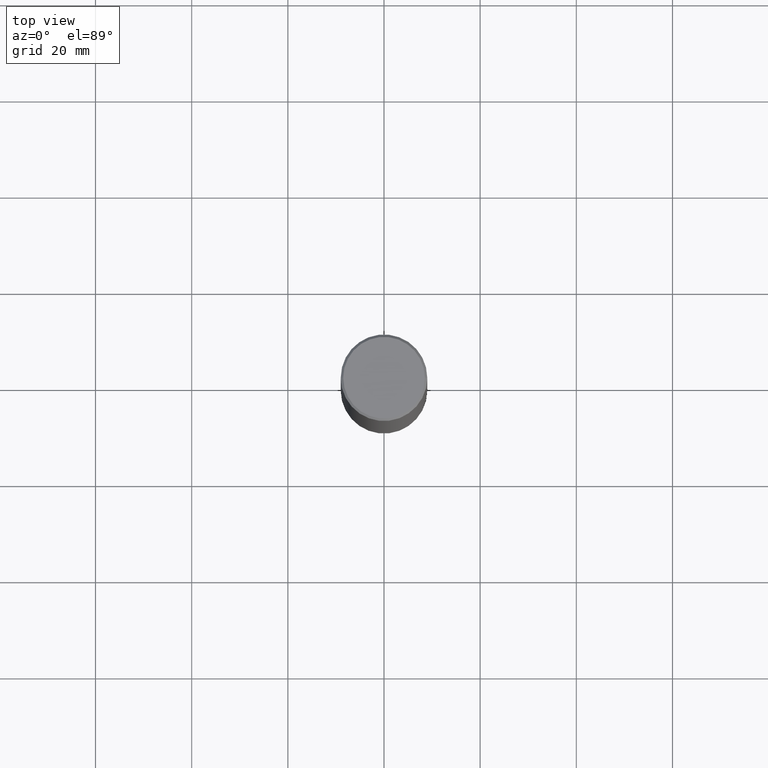
[diagram: clean part render]
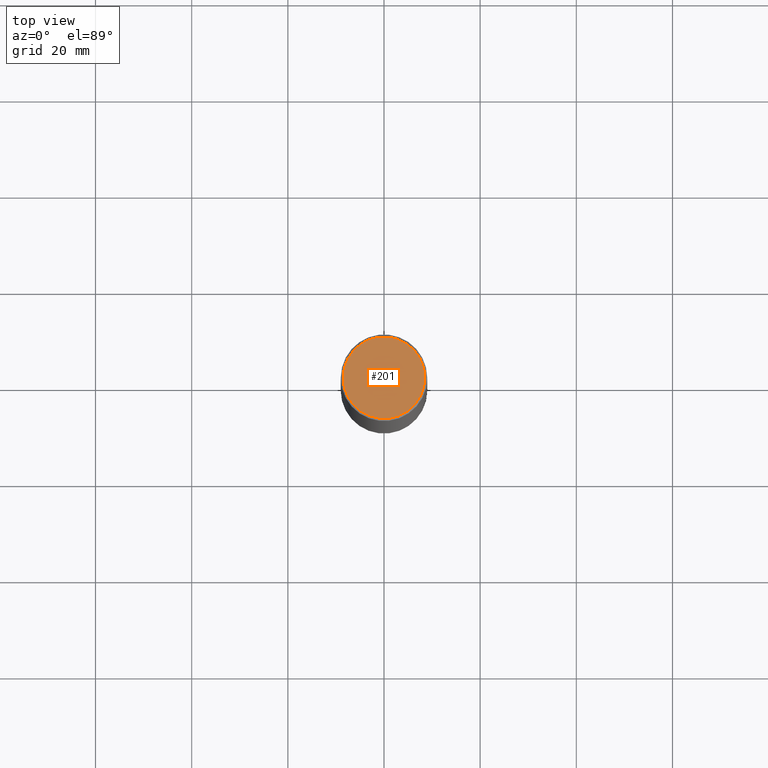
[diagram: same view with one face highlighted and labeled with its STEP entity id]
A machine part, top view. The second image highlights one B-rep face of the part: STEP entity #201.
In plain terms, the highlighted planar face has unit normal (0, -0, -1).
Its self-contained STEP definition (entity closure, byte-faithful):
#47 = CARTESIAN_POINT ( 'NONE',  ( -1.043851414335219820E-46, 1.490343170380447200E-32, 4.268512490100411279E-18 ) ) ;
#53 = EDGE_CURVE ( 'NONE', #355, #177, #208, .T. ) ;
#58 = ORIENTED_EDGE ( 'NONE', *, *, #53, .T. ) ;
#68 = AXIS2_PLACEMENT_3D ( 'NONE', #243, #160, #304 ) ;
#69 = CARTESIAN_POINT ( 'NONE',  ( 2.334753571284400520E-15, 0.3343499999999996475, -1.165242529397154385E-15 ) ) ;
#72 = EDGE_LOOP ( 'NONE', ( #198, #58 ) ) ;
#79 = DIRECTION ( 'NONE',  ( -2.445468806185136597E-29, 3.491481338843145583E-15, 1.000000000000000000 ) ) ;
#102 = FACE_OUTER_BOUND ( 'NONE', #72, .T. ) ;
#120 = AXIS2_PLACEMENT_3D ( 'NONE', #47, #79, #194 ) ;
#127 = DIRECTION ( 'NONE',  ( 2.438088387897960049E-29, -3.491481338843145188E-15, -1.000000000000000000 ) ) ;
#156 = DIRECTION ( 'NONE',  ( -1.000000000000000000, 6.982962677686265922E-15, -4.876176775795935793E-29 ) ) ;
#160 = DIRECTION ( 'NONE',  ( -2.445468806185136597E-29, 3.491481338843145583E-15, 1.000000000000000000 ) ) ;
#177 = VERTEX_POINT ( 'NONE', #217 ) ;
#194 = DIRECTION ( 'NONE',  ( 1.000000000000000000, -6.982962677686266711E-15, 4.876061227832602160E-29 ) ) ;
#198 = ORIENTED_EDGE ( 'NONE', *, *, #323, .T. ) ;
#201 = ADVANCED_FACE ( 'NONE', ( #102 ), #214, .F. ) ;
#208 = CIRCLE ( 'NONE', #68, 0.3343499999999996475 ) ;
#214 = PLANE ( 'NONE',  #350 ) ;
#217 = CARTESIAN_POINT ( 'NONE',  ( -0.3343499999999996475, 2.369668384672832169E-15, 4.268512490083961526E-18 ) ) ;
#224 = CARTESIAN_POINT ( 'NONE',  ( 0.3343499999999996475, -2.397327298921056737E-15, 4.268512490116958099E-18 ) ) ;
#243 = CARTESIAN_POINT ( 'NONE',  ( -1.043851414335219820E-46, 1.490343170380447200E-32, 4.268512490100411279E-18 ) ) ;
#263 = CIRCLE ( 'NONE', #120, 0.3343499999999996475 ) ;
#304 = DIRECTION ( 'NONE',  ( 1.000000000000000000, -6.982962677686266711E-15, 4.876061227832602160E-29 ) ) ;
#323 = EDGE_CURVE ( 'NONE', #177, #355, #263, .T. ) ;
#350 = AXIS2_PLACEMENT_3D ( 'NONE', #69, #127, #156 ) ;
#355 = VERTEX_POINT ( 'NONE', #224 ) ;